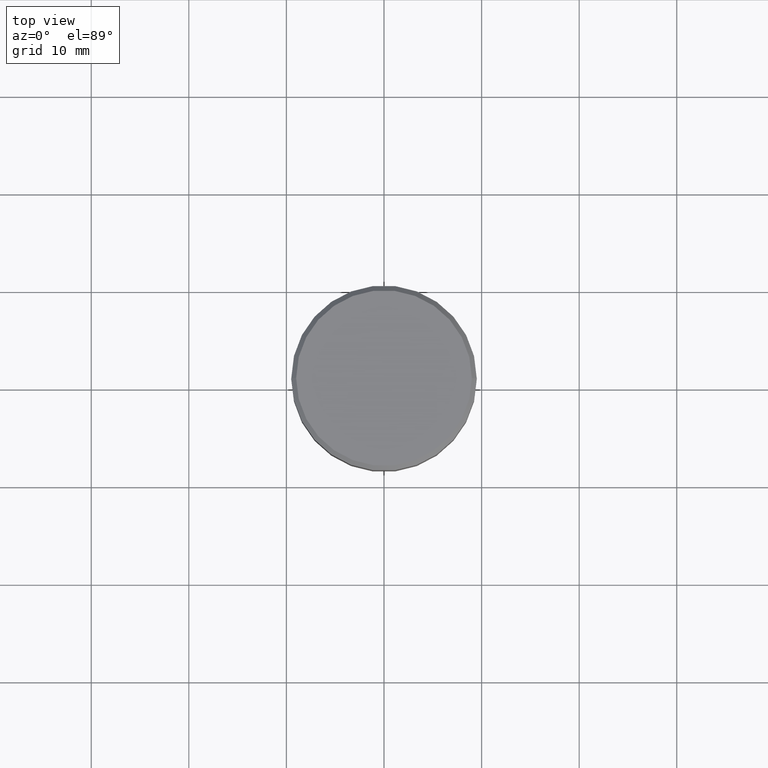
[diagram: clean part render]
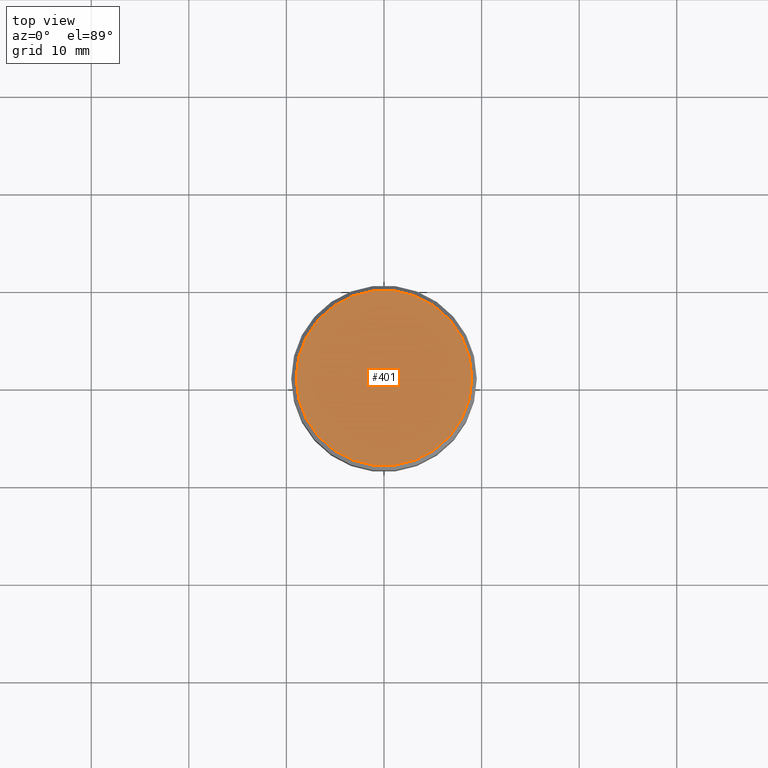
[diagram: same view with one face highlighted and labeled with its STEP entity id]
A machine part, top view. The second image highlights one B-rep face of the part: STEP entity #401.
In plain terms, the highlighted planar face has unit normal (0, -0, 1).
Its self-contained STEP definition (entity closure, byte-faithful):
#3 = DIRECTION ( 'NONE',  ( 1.000000000000000000, 0.000000000000000000, 0.000000000000000000 ) ) ;
#54 = CARTESIAN_POINT ( 'NONE',  ( 0.000000000000000000, 0.000000000000000000, 0.000000000000000000 ) ) ;
#82 = DIRECTION ( 'NONE',  ( 1.000000000000000000, 0.000000000000000000, 0.000000000000000000 ) ) ;
#102 = CARTESIAN_POINT ( 'NONE',  ( 0.000000000000000000, 0.000000000000000000, 0.000000000000000000 ) ) ;
#139 = AXIS2_PLACEMENT_3D ( 'NONE', #54, #422, #3 ) ;
#142 = EDGE_LOOP ( 'NONE', ( #229, #393 ) ) ;
#149 = CARTESIAN_POINT ( 'NONE',  ( 0.000000000000000000, 0.000000000000000000, 0.000000000000000000 ) ) ;
#157 = AXIS2_PLACEMENT_3D ( 'NONE', #149, #540, #82 ) ;
#159 = DIRECTION ( 'NONE',  ( 1.000000000000000000, 0.000000000000000000, 0.000000000000000000 ) ) ;
#186 = CARTESIAN_POINT ( 'NONE',  ( 9.000000000000001776, 1.132798289211301698E-15, 0.000000000000000000 ) ) ;
#229 = ORIENTED_EDGE ( 'NONE', *, *, #370, .T. ) ;
#255 = EDGE_CURVE ( 'NONE', #307, #438, #513, .T. ) ;
#307 = VERTEX_POINT ( 'NONE', #186 ) ;
#370 = EDGE_CURVE ( 'NONE', #438, #307, #514, .T. ) ;
#393 = ORIENTED_EDGE ( 'NONE', *, *, #255, .T. ) ;
#401 = ADVANCED_FACE ( 'NONE', ( #576 ), #494, .T. ) ;
#422 = DIRECTION ( 'NONE',  ( -0.000000000000000000, -0.000000000000000000, 1.000000000000000000 ) ) ;
#438 = VERTEX_POINT ( 'NONE', #563 ) ;
#449 = DIRECTION ( 'NONE',  ( -0.000000000000000000, -0.000000000000000000, 1.000000000000000000 ) ) ;
#494 = PLANE ( 'NONE',  #157 ) ;
#513 = CIRCLE ( 'NONE', #139, 9.000000000000001776 ) ;
#514 = CIRCLE ( 'NONE', #536, 9.000000000000001776 ) ;
#536 = AXIS2_PLACEMENT_3D ( 'NONE', #102, #449, #159 ) ;
#540 = DIRECTION ( 'NONE',  ( 0.000000000000000000, -0.000000000000000000, 1.000000000000000000 ) ) ;
#563 = CARTESIAN_POINT ( 'NONE',  ( -9.000000000000001776, 0.000000000000000000, 0.000000000000000000 ) ) ;
#576 = FACE_OUTER_BOUND ( 'NONE', #142, .T. ) ;